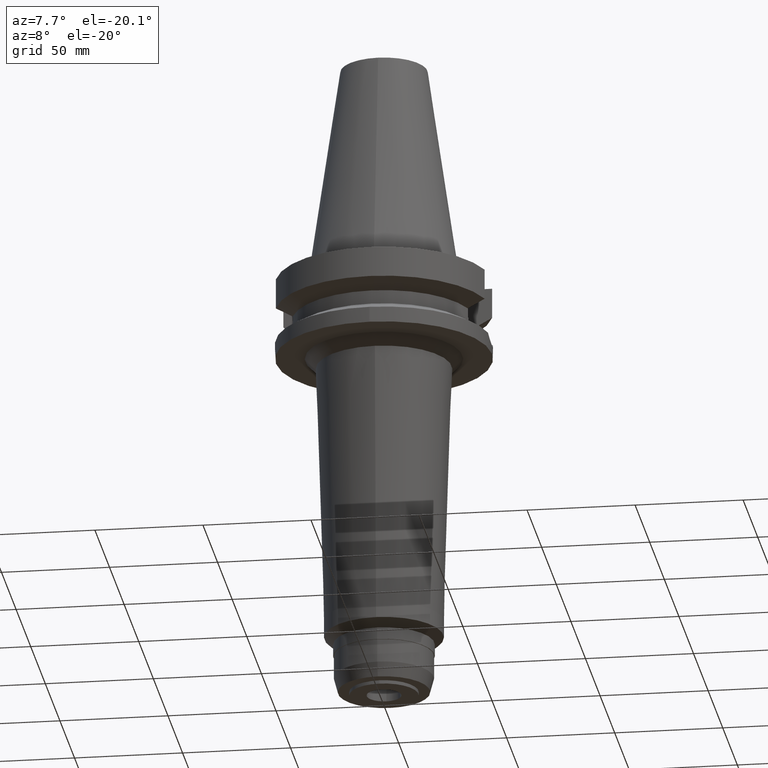
[diagram: clean part render]
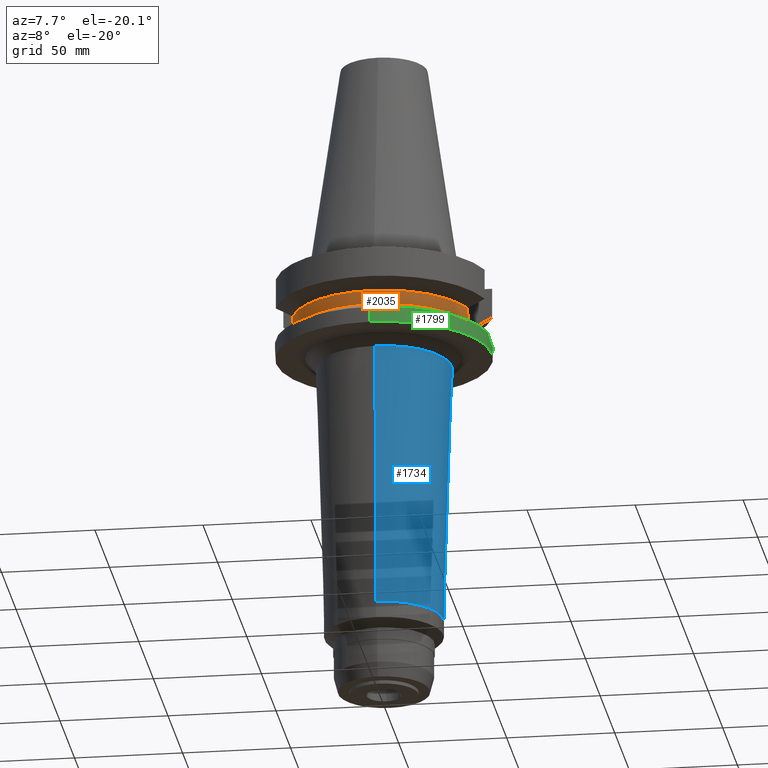
[diagram: same view with three faces highlighted in distinct colors, each labeled with its STEP entity id]
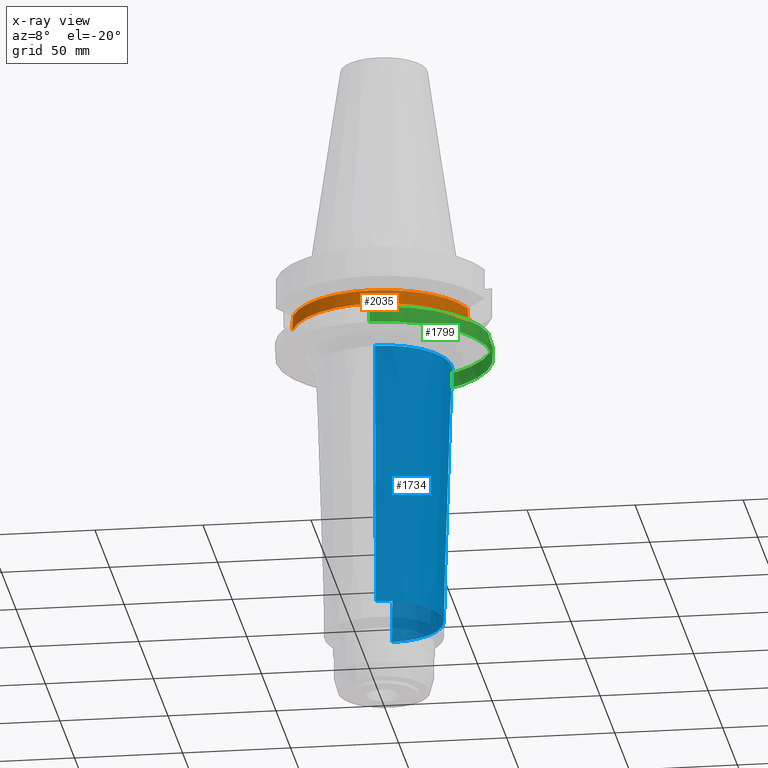
[diagram: x-ray of the same camera — body ghosted, the three highlighted faces saturated]
A machine part, auxiliary view with three faces highlighted in distinct colors.
The next image is the same camera in x-ray (body ghosted, the three faces saturated) — at least one of them is partly hidden behind the body in this view.
Their STEP definitions:

[orange] entity #2035 — the highlighted cylindrical surface (partial cylindrical patch) has radius 42.5 mm, axis along (0, 0, -1).
#568=CARTESIAN_POINT('',(-4.085052569294E1,-1.172538061688E1,
-2.640718074535E1));
#573=CARTESIAN_POINT('',(0.E0,0.E0,-2.640718074535E1));
#574=DIRECTION('',(0.E0,0.E0,1.E0));
#575=DIRECTION('',(-9.611888398338E-1,-2.758913086325E-1,0.E0));
#576=AXIS2_PLACEMENT_3D('',#573,#574,#575);
#581=CARTESIAN_POINT('',(0.E0,0.E0,-2.640718074535E1));
#582=DIRECTION('',(0.E0,0.E0,1.E0));
#583=DIRECTION('',(0.E0,-1.E0,0.E0));
#584=AXIS2_PLACEMENT_3D('',#581,#582,#583);
#589=CARTESIAN_POINT('',(4.085052569294E1,-1.172538061688E1,-2.640718074535E1));
#906=CARTESIAN_POINT('',(-4.085052569294E1,-1.172538061688E1,
-2.640718074535E1));
#907=CARTESIAN_POINT('',(-4.077854355979E1,-1.197616206914E1,
-2.584784901949E1));
#908=CARTESIAN_POINT('',(-4.065472282753E1,-1.239073116541E1,
-2.471137551056E1));
#909=CARTESIAN_POINT('',(-4.053737830953E1,-1.276677337064E1,
-2.294127393164E1));
#910=CARTESIAN_POINT('',(-4.051083188482E1,-1.285E1,-2.175068253365E1));
#911=CARTESIAN_POINT('',(-4.051083188482E1,-1.285E1,-2.115E1));
#916=DIRECTION('',(-9.395584592291E-7,2.962048808703E-6,9.999999999952E-1));
#917=VECTOR('',#916,1.157154441309E0);
#918=CARTESIAN_POINT('',(-4.051083188482E1,-1.285E1,-2.115E1));
#919=LINE('',#918,#917);
#923=DIRECTION('',(-9.390344904619E-7,-2.960396942958E-6,-9.999999999952E-1));
#924=VECTOR('',#923,1.157154455979E0);
#925=CARTESIAN_POINT('',(4.051083297143E1,-1.284999657436E1,-1.999284554403E1));
#926=LINE('',#925,#924);
#930=CARTESIAN_POINT('',(4.051083188482E1,-1.285E1,-2.115E1));
#931=CARTESIAN_POINT('',(4.051083188482E1,-1.285E1,-2.175069585816E1));
#932=CARTESIAN_POINT('',(4.053738019969E1,-1.276676732570E1,-2.294130440814E1));
#933=CARTESIAN_POINT('',(4.065472022884E1,-1.239073952219E1,-2.471134008448E1));
#934=CARTESIAN_POINT('',(4.077854173820E1,-1.197616841546E1,-2.584783486495E1));
#935=CARTESIAN_POINT('',(4.085052569294E1,-1.172538061688E1,-2.640718074535E1));
#956=CARTESIAN_POINT('',(0.E0,1.006319759054E-14,-1.999281925465E1));
#957=DIRECTION('',(0.E0,0.E0,-1.E0));
#958=DIRECTION('',(9.531960443487E-1,-3.023529411765E-1,0.E0));
#959=AXIS2_PLACEMENT_3D('',#956,#957,#958);
#964=CARTESIAN_POINT('',(0.E0,1.006319759054E-14,-1.999281925465E1));
#965=DIRECTION('',(0.E0,0.E0,-1.E0));
#966=DIRECTION('',(0.E0,-1.E0,0.E0));
#967=AXIS2_PLACEMENT_3D('',#964,#965,#966);
#1219=VERTEX_POINT('',#589);
#1220=VERTEX_POINT('',#930);
#1231=VERTEX_POINT('',#568);
#1232=CARTESIAN_POINT('',(0.E0,-4.25E1,-2.640718074535E1));
#1233=VERTEX_POINT('',#1232);
#1245=CARTESIAN_POINT('',(-4.051083188482E1,-1.285E1,-2.115E1));
#1246=VERTEX_POINT('',#1245);
#1247=CARTESIAN_POINT('',(-4.051083297203E1,-1.284999657245E1,
-1.999284555870E1));
#1248=VERTEX_POINT('',#1247);
#1249=CARTESIAN_POINT('',(4.051083188482E1,-1.285E1,-1.999281925465E1));
#1250=CARTESIAN_POINT('',(0.E0,-4.25E1,-1.999281925465E1));
#1251=VERTEX_POINT('',#1249);
#1252=VERTEX_POINT('',#1250);
#2017=CARTESIAN_POINT('',(0.E0,2.657606018830E-14,1.1701E2));
#2018=DIRECTION('',(0.E0,0.E0,-1.E0));
#2019=DIRECTION('',(0.E0,-1.E0,0.E0));
#2020=AXIS2_PLACEMENT_3D('',#2017,#2018,#2019);
#2021=CYLINDRICAL_SURFACE('',#2020,4.25E1);
#2022=ORIENTED_EDGE('',*,*,#1864,.T.);
#2023=ORIENTED_EDGE('',*,*,#2005,.T.);
#2025=ORIENTED_EDGE('',*,*,#2024,.F.);
#2027=ORIENTED_EDGE('',*,*,#2026,.F.);
#2029=ORIENTED_EDGE('',*,*,#2028,.T.);
#2030=ORIENTED_EDGE('',*,*,#1809,.T.);
#2031=ORIENTED_EDGE('',*,*,#1835,.F.);
#2032=ORIENTED_EDGE('',*,*,#1833,.F.);
#2033=EDGE_LOOP('',(#2022,#2023,#2025,#2027,#2029,#2030,#2031,#2032));
#2034=FACE_OUTER_BOUND('',#2033,.F.);
#577=CIRCLE('',#576,4.25E1);
#585=CIRCLE('',#584,4.25E1);
#912=B_SPLINE_CURVE_WITH_KNOTS('',3,(#906,#907,#908,#909,#910,#911),
.UNSPECIFIED.,.F.,.F.,(4,1,1,4),(0.E0,3.333333333333E-1,6.666666666667E-1,1.E0),
.UNSPECIFIED.);
#936=B_SPLINE_CURVE_WITH_KNOTS('',3,(#930,#931,#932,#933,#934,#935),
.UNSPECIFIED.,.F.,.F.,(4,1,1,4),(0.E0,3.333333333333E-1,6.666666666667E-1,1.E0),
.UNSPECIFIED.);
#960=CIRCLE('',#959,4.25E1);
#968=CIRCLE('',#967,4.25E1);
#1809=EDGE_CURVE('',#1220,#1219,#936,.T.);
#1833=EDGE_CURVE('',#1231,#1233,#577,.T.);
#1835=EDGE_CURVE('',#1233,#1219,#585,.T.);
#1864=EDGE_CURVE('',#1231,#1246,#912,.T.);
#2005=EDGE_CURVE('',#1246,#1248,#919,.T.);
#2024=EDGE_CURVE('',#1252,#1248,#968,.T.);
#2026=EDGE_CURVE('',#1251,#1252,#960,.T.);
#2028=EDGE_CURVE('',#1251,#1220,#926,.T.);
#2035=ADVANCED_FACE('',(#2034),#2021,.T.);

[blue] entity #1734 — the highlighted conical surface has half-angle 1.784 deg.
#428=DIRECTION('',(0.E0,3.114036538623E-2,-9.995150212196E-1));
#429=VECTOR('',#428,1.234598754198E2);
#430=CARTESIAN_POINT('',(0.E0,-3.134458563111E1,-4.3E1));
#431=LINE('',#430,#429);
#443=DIRECTION('',(0.E0,-3.114036538623E-2,-9.995150212196E-1));
#444=VECTOR('',#443,1.234598754198E2);
#445=CARTESIAN_POINT('',(0.E0,3.134458563111E1,-4.3E1));
#446=LINE('',#445,#444);
#450=CARTESIAN_POINT('',(0.E0,0.E0,-1.664E2));
#451=DIRECTION('',(0.E0,0.E0,-1.E0));
#452=DIRECTION('',(0.E0,1.E0,0.E0));
#453=AXIS2_PLACEMENT_3D('',#450,#451,#452);
#458=CARTESIAN_POINT('',(0.E0,0.E0,-4.3E1));
#459=DIRECTION('',(0.E0,0.E0,1.E0));
#460=DIRECTION('',(0.E0,-1.E0,0.E0));
#461=AXIS2_PLACEMENT_3D('',#458,#459,#460);
#1196=CARTESIAN_POINT('',(0.E0,2.75E1,-1.664E2));
#1197=VERTEX_POINT('',#1196);
#1198=CARTESIAN_POINT('',(0.E0,-2.75E1,-1.664E2));
#1199=VERTEX_POINT('',#1198);
#1200=CARTESIAN_POINT('',(0.E0,3.134458563111E1,-4.3E1));
#1201=VERTEX_POINT('',#1200);
#1202=CARTESIAN_POINT('',(0.E0,-3.134458563111E1,-4.3E1));
#1203=VERTEX_POINT('',#1202);
#1722=CARTESIAN_POINT('',(0.E0,0.E0,-1.047E2));
#1723=DIRECTION('',(0.E0,0.E0,1.E0));
#1724=DIRECTION('',(0.E0,1.E0,0.E0));
#1725=AXIS2_PLACEMENT_3D('',#1722,#1723,#1724);
#1726=CONICAL_SURFACE('',#1725,2.942229281556E1,1.7845E0);
#1727=ORIENTED_EDGE('',*,*,#1712,.T.);
#1728=ORIENTED_EDGE('',*,*,#1689,.T.);
#1729=ORIENTED_EDGE('',*,*,#1716,.F.);
#1731=ORIENTED_EDGE('',*,*,#1730,.T.);
#1732=EDGE_LOOP('',(#1727,#1728,#1729,#1731));
#1733=FACE_OUTER_BOUND('',#1732,.F.);
#454=CIRCLE('',#453,2.75E1);
#462=CIRCLE('',#461,3.134458563112E1);
#1689=EDGE_CURVE('',#1197,#1199,#454,.T.);
#1712=EDGE_CURVE('',#1201,#1197,#446,.T.);
#1716=EDGE_CURVE('',#1203,#1199,#431,.T.);
#1730=EDGE_CURVE('',#1203,#1201,#462,.T.);
#1734=ADVANCED_FACE('',(#1733),#1726,.T.);

[green] entity #1799 — the highlighted cylindrical surface (partial cylindrical patch) has radius 50 mm, axis along (0, 0, -1).
#488=CARTESIAN_POINT('',(0.E0,2.657606018830E-14,-3.8E1));
#489=DIRECTION('',(0.E0,0.E0,1.E0));
#490=DIRECTION('',(0.E0,-1.E0,0.E0));
#491=AXIS2_PLACEMENT_3D('',#488,#489,#490);
#520=CARTESIAN_POINT('',(4.926250064874E1,-8.556052234130E0,-3.073730776427E1));
#521=CARTESIAN_POINT('',(4.936648665730E1,-7.957340272815E0,-3.127161947515E1));
#522=CARTESIAN_POINT('',(4.956426094988E1,-6.687958210927E0,-3.220404863301E1));
#523=CARTESIAN_POINT('',(4.980474395051E1,-4.596534836254E0,-3.322666129295E1));
#524=CARTESIAN_POINT('',(4.996455940568E1,-2.307543939226E0,-3.386326759648E1));
#525=CARTESIAN_POINT('',(5.E1,-7.763867824108E-1,-3.4E1));
#526=CARTESIAN_POINT('',(5.E1,1.788045559095E-14,-3.4E1));
#531=CARTESIAN_POINT('',(5.E1,1.788045559095E-14,-3.4E1));
#532=CARTESIAN_POINT('',(5.E1,7.765078293487E-1,-3.4E1));
#533=CARTESIAN_POINT('',(4.996454815888E1,2.307842684335E0,-3.386322451467E1));
#534=CARTESIAN_POINT('',(4.980470976350E1,4.596900464963E0,-3.322652220688E1));
#535=CARTESIAN_POINT('',(4.956422456200E1,6.688208587190E0,-3.220388372693E1));
#536=CARTESIAN_POINT('',(4.936647109286E1,7.957429886964E0,-3.127153950031E1));
#537=CARTESIAN_POINT('',(4.926250064874E1,8.556052234130E0,-3.073730776427E1));
#542=DIRECTION('',(0.E0,2.152361642122E-14,-1.E0));
#543=VECTOR('',#542,7.262692235730E0);
#544=CARTESIAN_POINT('',(0.E0,5.E1,-3.073730776427E1));
#545=LINE('',#544,#543);
#599=CARTESIAN_POINT('',(0.E0,0.E0,-3.073730776427E1));
#600=DIRECTION('',(0.E0,0.E0,-1.E0));
#601=DIRECTION('',(9.852500129747E-1,-1.711210446826E-1,0.E0));
#602=AXIS2_PLACEMENT_3D('',#599,#600,#601);
#643=DIRECTION('',(0.E0,-2.250196262218E-14,-1.E0));
#644=VECTOR('',#643,7.262692235730E0);
#645=CARTESIAN_POINT('',(0.E0,-5.E1,-3.073730776427E1));
#646=LINE('',#645,#644);
#668=CARTESIAN_POINT('',(0.E0,0.E0,-3.073730776427E1));
#669=DIRECTION('',(0.E0,0.E0,-1.E0));
#670=DIRECTION('',(0.E0,1.E0,0.E0));
#671=AXIS2_PLACEMENT_3D('',#668,#669,#670);
#1208=CARTESIAN_POINT('',(0.E0,-5.E1,-3.8E1));
#1209=CARTESIAN_POINT('',(0.E0,5.E1,-3.8E1));
#1210=VERTEX_POINT('',#1208);
#1211=VERTEX_POINT('',#1209);
#1212=VERTEX_POINT('',#531);
#1213=VERTEX_POINT('',#537);
#1214=VERTEX_POINT('',#520);
#1215=CARTESIAN_POINT('',(0.E0,5.E1,-3.073730776427E1));
#1216=VERTEX_POINT('',#1215);
#1217=CARTESIAN_POINT('',(0.E0,-5.E1,-3.073730776427E1));
#1218=VERTEX_POINT('',#1217);
#1779=CARTESIAN_POINT('',(0.E0,2.657606018830E-14,1.1701E2));
#1780=DIRECTION('',(0.E0,0.E0,-1.E0));
#1781=DIRECTION('',(0.E0,-1.E0,0.E0));
#1782=AXIS2_PLACEMENT_3D('',#1779,#1780,#1781);
#1783=CYLINDRICAL_SURFACE('',#1782,5.E1);
#1785=ORIENTED_EDGE('',*,*,#1784,.T.);
#1787=ORIENTED_EDGE('',*,*,#1786,.T.);
#1789=ORIENTED_EDGE('',*,*,#1788,.F.);
#1791=ORIENTED_EDGE('',*,*,#1790,.T.);
#1792=ORIENTED_EDGE('',*,*,#1768,.F.);
#1794=ORIENTED_EDGE('',*,*,#1793,.F.);
#1796=ORIENTED_EDGE('',*,*,#1795,.F.);
#1797=EDGE_LOOP('',(#1785,#1787,#1789,#1791,#1792,#1794,#1796));
#1798=FACE_OUTER_BOUND('',#1797,.F.);
#492=CIRCLE('',#491,5.E1);
#527=B_SPLINE_CURVE_WITH_KNOTS('',3,(#520,#521,#522,#523,#524,#525,#526),
.UNSPECIFIED.,.F.,.F.,(4,1,1,1,4),(0.E0,2.5E-1,5.E-1,7.5E-1,1.E0),
.UNSPECIFIED.);
#538=B_SPLINE_CURVE_WITH_KNOTS('',3,(#531,#532,#533,#534,#535,#536,#537),
.UNSPECIFIED.,.F.,.F.,(4,1,1,1,4),(0.E0,2.5E-1,5.E-1,7.5E-1,1.E0),
.UNSPECIFIED.);
#603=CIRCLE('',#602,5.E1);
#672=CIRCLE('',#671,5.E1);
#1768=EDGE_CURVE('',#1210,#1211,#492,.T.);
#1784=EDGE_CURVE('',#1214,#1212,#527,.T.);
#1786=EDGE_CURVE('',#1212,#1213,#538,.T.);
#1788=EDGE_CURVE('',#1216,#1213,#672,.T.);
#1790=EDGE_CURVE('',#1216,#1211,#545,.T.);
#1793=EDGE_CURVE('',#1218,#1210,#646,.T.);
#1795=EDGE_CURVE('',#1214,#1218,#603,.T.);
#1799=ADVANCED_FACE('',(#1798),#1783,.T.);